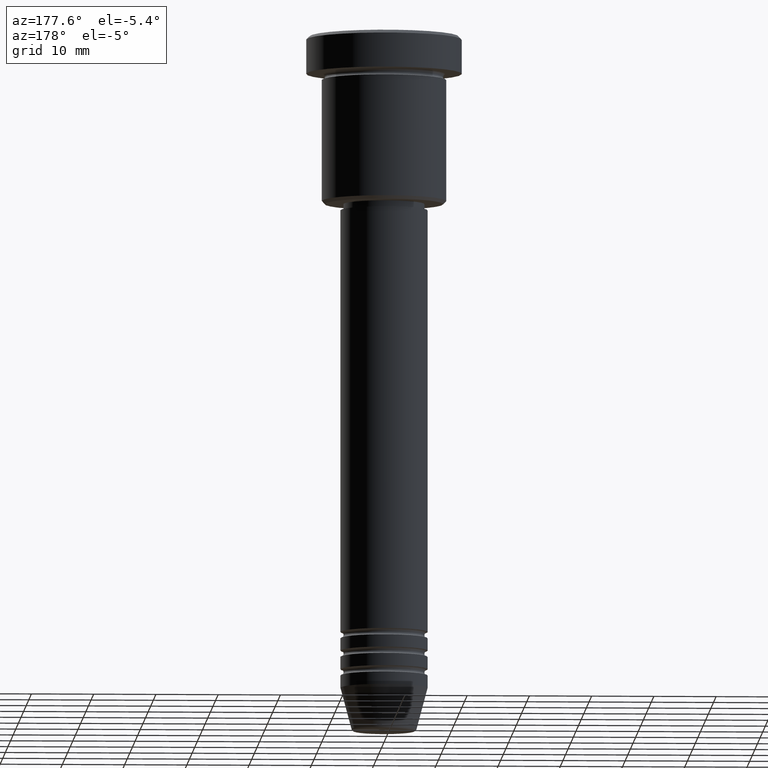
[diagram: clean part render]
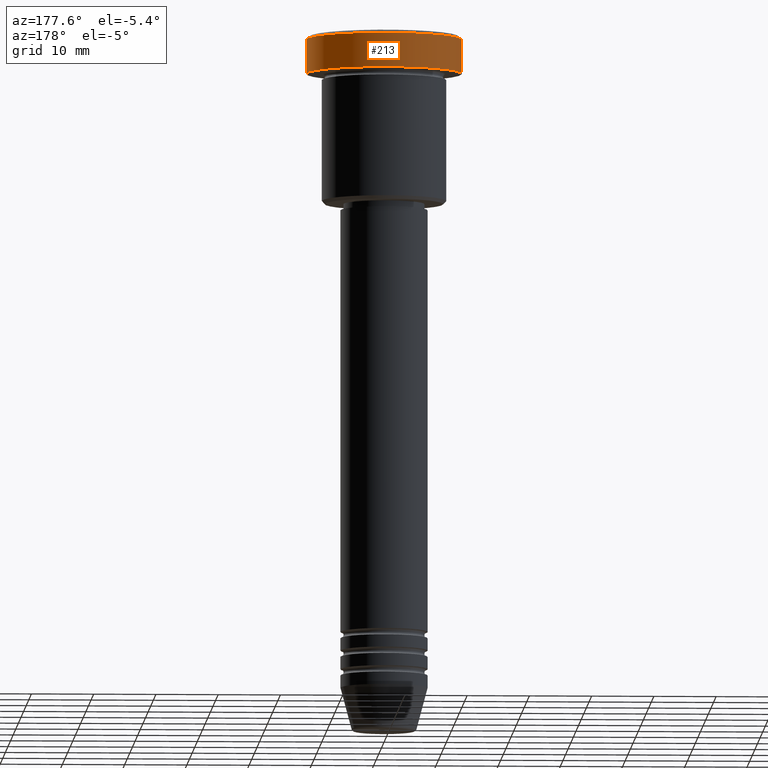
[diagram: same view with one face highlighted and labeled with its STEP entity id]
A machine part, auxiliary view. The second image highlights one B-rep face of the part: STEP entity #213.
In plain terms, the highlighted cylindrical surface (partial cylindrical patch) has radius 12.5 mm, axis along (-0, -0, 1).
Its self-contained STEP definition (entity closure, byte-faithful):
#7 = AXIS2_PLACEMENT_3D ( 'NONE', #944, #127, #938 ) ;
#11 = EDGE_LOOP ( 'NONE', ( #91, #87, #325, #156 ) ) ;
#34 = EDGE_CURVE ( 'NONE', #715, #598, #451, .T. ) ;
#55 = LINE ( 'NONE', #930, #564 ) ;
#87 = ORIENTED_EDGE ( 'NONE', *, *, #575, .T. ) ;
#91 = ORIENTED_EDGE ( 'NONE', *, *, #34, .T. ) ;
#127 = DIRECTION ( 'NONE',  ( -0.000000000000000000, -0.000000000000000000, 1.000000000000000000 ) ) ;
#131 = VERTEX_POINT ( 'NONE', #446 ) ;
#156 = ORIENTED_EDGE ( 'NONE', *, *, #652, .F. ) ;
#159 = DIRECTION ( 'NONE',  ( 0.000000000000000000, 0.000000000000000000, -1.000000000000000000 ) ) ;
#187 = VECTOR ( 'NONE', #779, 1000.000000000000000 ) ;
#209 = CARTESIAN_POINT ( 'NONE',  ( 12.50000000000000000, 0.000000000000000000, -5.999999999999996447 ) ) ;
#213 = ADVANCED_FACE ( 'NONE', ( #892 ), #371, .T. ) ;
#284 = AXIS2_PLACEMENT_3D ( 'NONE', #725, #1164, #1093 ) ;
#325 = ORIENTED_EDGE ( 'NONE', *, *, #800, .T. ) ;
#349 = CARTESIAN_POINT ( 'NONE',  ( -12.50000000000000000, 1.530808498934191521E-15, -5.999999999999996447 ) ) ;
#371 = CYLINDRICAL_SURFACE ( 'NONE', #284, 12.50000000000000000 ) ;
#425 = LINE ( 'NONE', #498, #187 ) ;
#446 = CARTESIAN_POINT ( 'NONE',  ( -12.50000000000000000, 1.530808498934191521E-15, -0.5000000000000056621 ) ) ;
#447 = DIRECTION ( 'NONE',  ( 1.000000000000000000, 0.000000000000000000, 0.000000000000000000 ) ) ;
#451 = CIRCLE ( 'NONE', #7, 12.50000000000000000 ) ;
#498 = CARTESIAN_POINT ( 'NONE',  ( -12.50000000000000000, 1.530808498934191521E-15, 0.000000000000000000 ) ) ;
#524 = CARTESIAN_POINT ( 'NONE',  ( 12.50000000000000000, 0.000000000000000000, -0.5000000000000056621 ) ) ;
#564 = VECTOR ( 'NONE', #956, 1000.000000000000000 ) ;
#575 = EDGE_CURVE ( 'NONE', #598, #131, #425, .T. ) ;
#598 = VERTEX_POINT ( 'NONE', #349 ) ;
#652 = EDGE_CURVE ( 'NONE', #715, #854, #55, .T. ) ;
#715 = VERTEX_POINT ( 'NONE', #209 ) ;
#725 = CARTESIAN_POINT ( 'NONE',  ( 0.000000000000000000, 0.000000000000000000, 0.000000000000000000 ) ) ;
#728 = CIRCLE ( 'NONE', #884, 12.50000000000000000 ) ;
#779 = DIRECTION ( 'NONE',  ( -0.000000000000000000, -0.000000000000000000, 1.000000000000000000 ) ) ;
#800 = EDGE_CURVE ( 'NONE', #131, #854, #728, .T. ) ;
#816 = CARTESIAN_POINT ( 'NONE',  ( 0.000000000000000000, 0.000000000000000000, -0.5000000000000056621 ) ) ;
#854 = VERTEX_POINT ( 'NONE', #524 ) ;
#884 = AXIS2_PLACEMENT_3D ( 'NONE', #816, #159, #447 ) ;
#892 = FACE_OUTER_BOUND ( 'NONE', #11, .T. ) ;
#930 = CARTESIAN_POINT ( 'NONE',  ( 12.50000000000000000, 0.000000000000000000, 0.000000000000000000 ) ) ;
#938 = DIRECTION ( 'NONE',  ( 1.000000000000000000, 0.000000000000000000, 0.000000000000000000 ) ) ;
#944 = CARTESIAN_POINT ( 'NONE',  ( 0.000000000000000000, 0.000000000000000000, -5.999999999999996447 ) ) ;
#956 = DIRECTION ( 'NONE',  ( -0.000000000000000000, -0.000000000000000000, 1.000000000000000000 ) ) ;
#1093 = DIRECTION ( 'NONE',  ( 1.000000000000000000, 0.000000000000000000, 0.000000000000000000 ) ) ;
#1164 = DIRECTION ( 'NONE',  ( -0.000000000000000000, -0.000000000000000000, 1.000000000000000000 ) ) ;